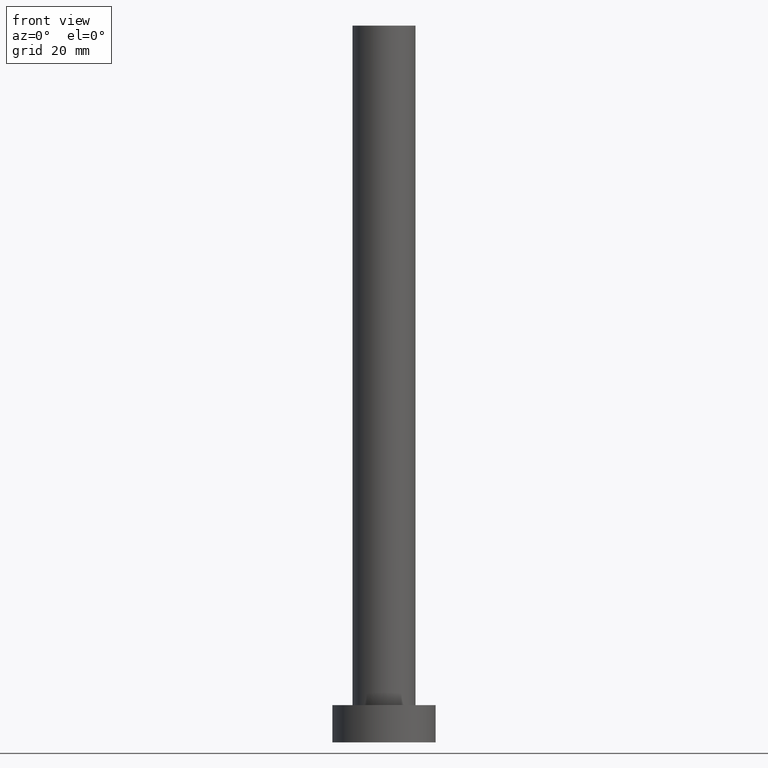
[diagram: clean part render]
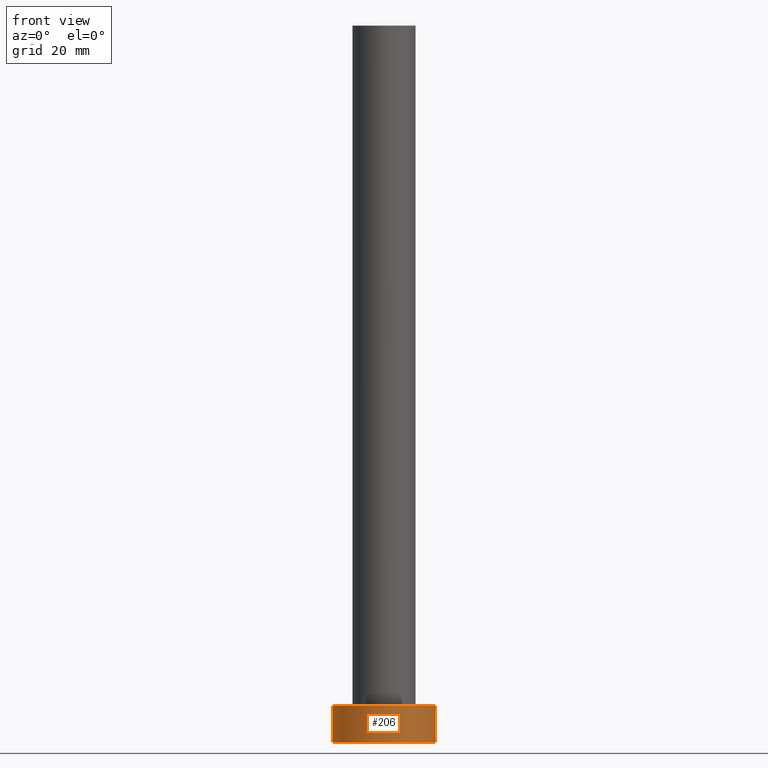
[diagram: same view with one face highlighted and labeled with its STEP entity id]
A machine part, front view. The second image highlights one B-rep face of the part: STEP entity #206.
In plain terms, the highlighted cylindrical surface (partial cylindrical patch) has radius 9 mm, axis along (-0, -0, -1).
Its self-contained STEP definition (entity closure, byte-faithful):
#5 = DIRECTION ( 'NONE',  ( -0.000000000000000000, -0.000000000000000000, -1.000000000000000000 ) ) ;
#11 = VERTEX_POINT ( 'NONE', #221 ) ;
#15 = VECTOR ( 'NONE', #97, 1000.000000000000000 ) ;
#17 = ORIENTED_EDGE ( 'NONE', *, *, #194, .F. ) ;
#21 = EDGE_LOOP ( 'NONE', ( #183, #17, #48, #248 ) ) ;
#48 = ORIENTED_EDGE ( 'NONE', *, *, #119, .T. ) ;
#50 = CARTESIAN_POINT ( 'NONE',  ( 0.000000000000000000, 0.000000000000000000, 6.500000000000000000 ) ) ;
#51 = VERTEX_POINT ( 'NONE', #74 ) ;
#53 = CYLINDRICAL_SURFACE ( 'NONE', #78, 9.000000000000000000 ) ;
#59 = CIRCLE ( 'NONE', #211, 9.000000000000000000 ) ;
#68 = DIRECTION ( 'NONE',  ( 1.000000000000000000, 0.000000000000000000, 0.000000000000000000 ) ) ;
#73 = EDGE_CURVE ( 'NONE', #51, #146, #59, .T. ) ;
#74 = CARTESIAN_POINT ( 'NONE',  ( -9.000000000000000000, 0.000000000000000000, 0.000000000000000000 ) ) ;
#75 = CARTESIAN_POINT ( 'NONE',  ( 0.000000000000000000, 0.000000000000000000, 0.000000000000000000 ) ) ;
#78 = AXIS2_PLACEMENT_3D ( 'NONE', #50, #126, #181 ) ;
#79 = CARTESIAN_POINT ( 'NONE',  ( -9.000000000000000000, 0.000000000000000000, 6.500000000000000000 ) ) ;
#91 = DIRECTION ( 'NONE',  ( 0.000000000000000000, 0.000000000000000000, 1.000000000000000000 ) ) ;
#96 = DIRECTION ( 'NONE',  ( 1.000000000000000000, 0.000000000000000000, 0.000000000000000000 ) ) ;
#97 = DIRECTION ( 'NONE',  ( -0.000000000000000000, -0.000000000000000000, -1.000000000000000000 ) ) ;
#103 = EDGE_CURVE ( 'NONE', #11, #146, #110, .T. ) ;
#110 = LINE ( 'NONE', #241, #242 ) ;
#118 = LINE ( 'NONE', #79, #15 ) ;
#119 = EDGE_CURVE ( 'NONE', #190, #51, #118, .T. ) ;
#126 = DIRECTION ( 'NONE',  ( -0.000000000000000000, -0.000000000000000000, -1.000000000000000000 ) ) ;
#128 = CARTESIAN_POINT ( 'NONE',  ( -9.000000000000000000, 0.000000000000000000, 6.500000000000000000 ) ) ;
#141 = CIRCLE ( 'NONE', #148, 9.000000000000000000 ) ;
#146 = VERTEX_POINT ( 'NONE', #208 ) ;
#147 = FACE_OUTER_BOUND ( 'NONE', #21, .T. ) ;
#148 = AXIS2_PLACEMENT_3D ( 'NONE', #254, #91, #68 ) ;
#153 = DIRECTION ( 'NONE',  ( 0.000000000000000000, 0.000000000000000000, 1.000000000000000000 ) ) ;
#181 = DIRECTION ( 'NONE',  ( -1.000000000000000000, 0.000000000000000000, 0.000000000000000000 ) ) ;
#183 = ORIENTED_EDGE ( 'NONE', *, *, #103, .F. ) ;
#190 = VERTEX_POINT ( 'NONE', #128 ) ;
#194 = EDGE_CURVE ( 'NONE', #190, #11, #141, .T. ) ;
#206 = ADVANCED_FACE ( 'NONE', ( #147 ), #53, .T. ) ;
#208 = CARTESIAN_POINT ( 'NONE',  ( 9.000000000000000000, 1.102182119232617517E-15, 0.000000000000000000 ) ) ;
#211 = AXIS2_PLACEMENT_3D ( 'NONE', #75, #153, #96 ) ;
#221 = CARTESIAN_POINT ( 'NONE',  ( 9.000000000000000000, 1.102182119232617517E-15, 6.500000000000000000 ) ) ;
#241 = CARTESIAN_POINT ( 'NONE',  ( 9.000000000000000000, 1.102182119232617517E-15, 6.500000000000000000 ) ) ;
#242 = VECTOR ( 'NONE', #5, 1000.000000000000000 ) ;
#248 = ORIENTED_EDGE ( 'NONE', *, *, #73, .T. ) ;
#254 = CARTESIAN_POINT ( 'NONE',  ( 0.000000000000000000, 0.000000000000000000, 6.500000000000000000 ) ) ;